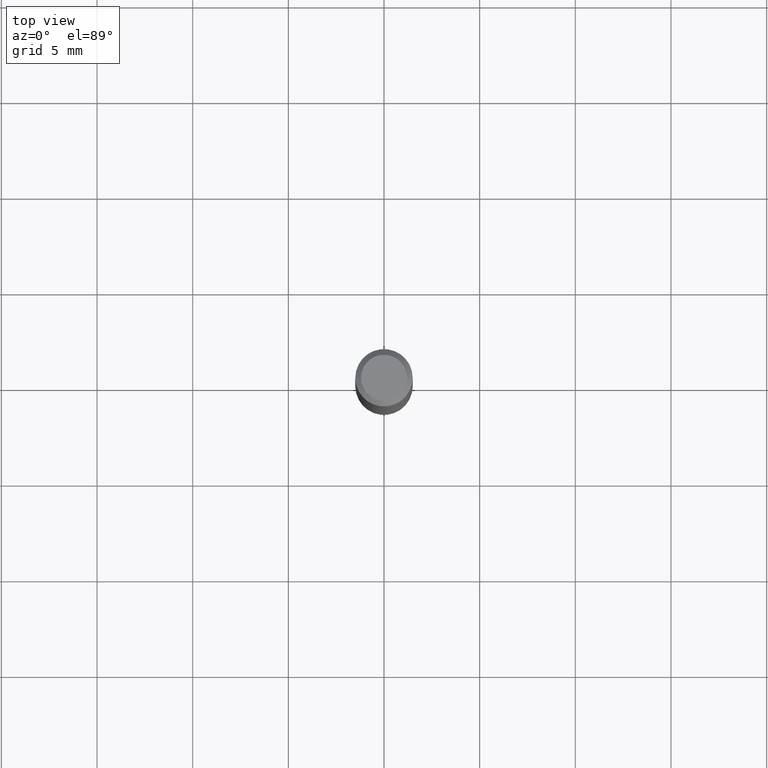
[diagram: clean part render]
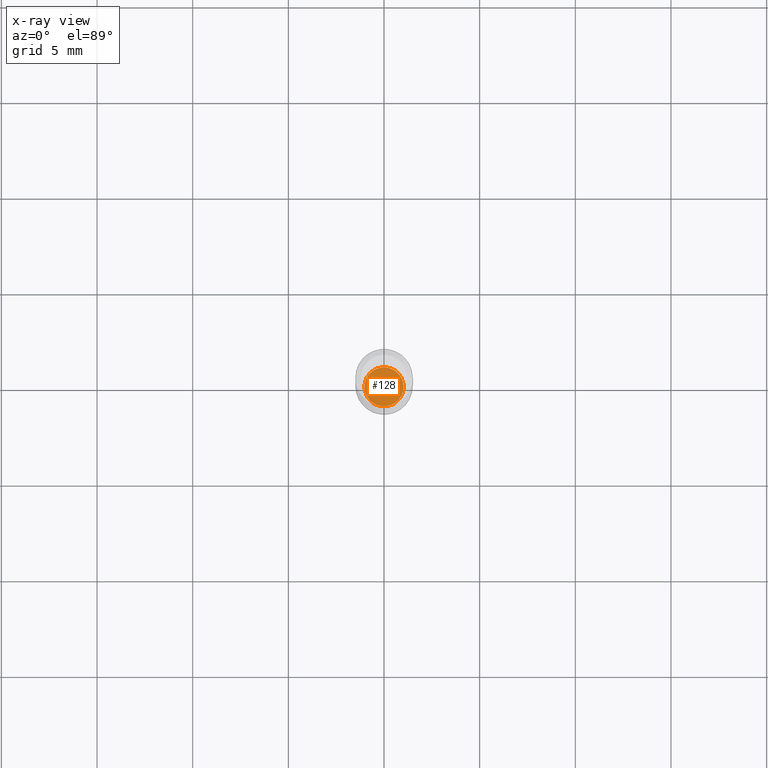
[diagram: x-ray — body ghosted, one internal face saturated and labeled with its STEP entity id]
A machine part, top view, then the same camera in x-ray: the body is ghosted and one INTERNAL B-rep face — a face not visible from any outside direction — is saturated and labeled: STEP entity #128.
In plain terms, the highlighted planar face has unit normal (-0, 0, 1).
Its self-contained STEP definition (entity closure, byte-faithful):
#4 = CIRCLE ( 'NONE', #253, 0.04025000000000000105 ) ;
#30 = AXIS2_PLACEMENT_3D ( 'NONE', #352, #88, #171 ) ;
#49 = FACE_OUTER_BOUND ( 'NONE', #179, .T. ) ;
#62 = VERTEX_POINT ( 'NONE', #129 ) ;
#66 = ORIENTED_EDGE ( 'NONE', *, *, #144, .F. ) ;
#81 = DIRECTION ( 'NONE',  ( 1.000000000000000000, -6.982962677686265922E-15, 4.876176775795935793E-29 ) ) ;
#86 = EDGE_CURVE ( 'NONE', #62, #154, #417, .T. ) ;
#88 = DIRECTION ( 'NONE',  ( -2.445468806185136597E-29, 3.491481338843145583E-15, 1.000000000000000000 ) ) ;
#115 = ORIENTED_EDGE ( 'NONE', *, *, #86, .F. ) ;
#121 = DIRECTION ( 'NONE',  ( 1.000000000000000000, -6.982962677686266711E-15, 0.000000000000000000 ) ) ;
#128 = ADVANCED_FACE ( 'NONE', ( #49 ), #230, .F. ) ;
#129 = CARTESIAN_POINT ( 'NONE',  ( 0.04025000000000000105, -4.102490573140695103E-15, -1.094499999999999806 ) ) ;
#144 = EDGE_CURVE ( 'NONE', #154, #62, #4, .T. ) ;
#151 = AXIS2_PLACEMENT_3D ( 'NONE', #202, #234, #81 ) ;
#154 = VERTEX_POINT ( 'NONE', #321 ) ;
#171 = DIRECTION ( 'NONE',  ( 1.000000000000000000, -6.982962677686266711E-15, 0.000000000000000000 ) ) ;
#179 = EDGE_LOOP ( 'NONE', ( #115, #66 ) ) ;
#202 = CARTESIAN_POINT ( 'NONE',  ( 2.676565608369631794E-29, -3.821426325363822773E-15, -1.094499999999999806 ) ) ;
#230 = PLANE ( 'NONE',  #151 ) ;
#234 = DIRECTION ( 'NONE',  ( -2.438088387897960049E-29, 3.491481338843145188E-15, 1.000000000000000000 ) ) ;
#253 = AXIS2_PLACEMENT_3D ( 'NONE', #354, #394, #121 ) ;
#321 = CARTESIAN_POINT ( 'NONE',  ( -0.04025000000000000105, -3.532783647046271191E-15, -1.094499999999999806 ) ) ;
#352 = CARTESIAN_POINT ( 'NONE',  ( 2.676565608369631794E-29, -3.821426325363822773E-15, -1.094499999999999806 ) ) ;
#354 = CARTESIAN_POINT ( 'NONE',  ( 2.676565608369631794E-29, -3.821426325363822773E-15, -1.094499999999999806 ) ) ;
#394 = DIRECTION ( 'NONE',  ( -2.445468806185136597E-29, 3.491481338843145583E-15, 1.000000000000000000 ) ) ;
#417 = CIRCLE ( 'NONE', #30, 0.04025000000000000105 ) ;